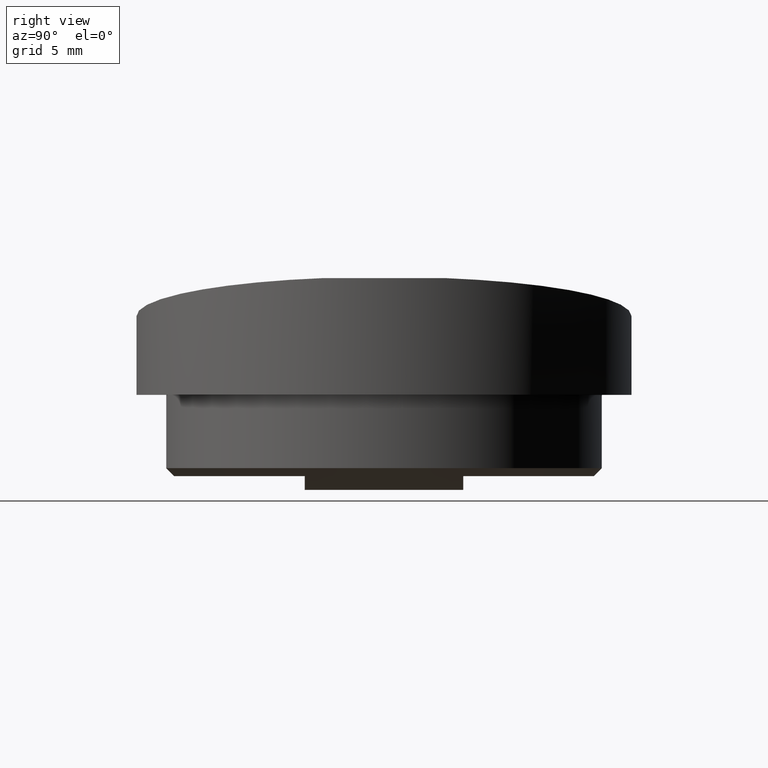
[diagram: clean part render]
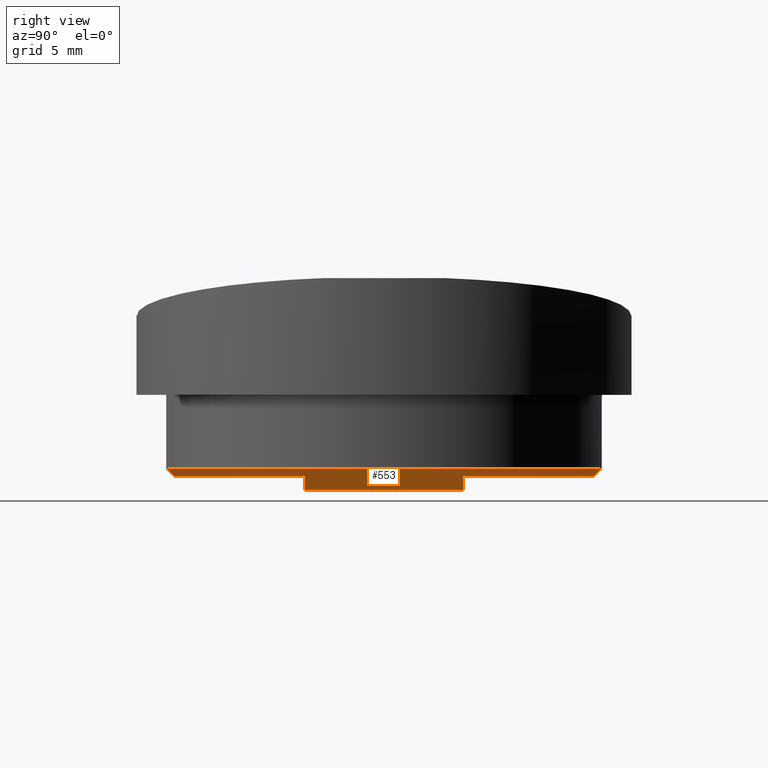
[diagram: same view with one face highlighted and labeled with its STEP entity id]
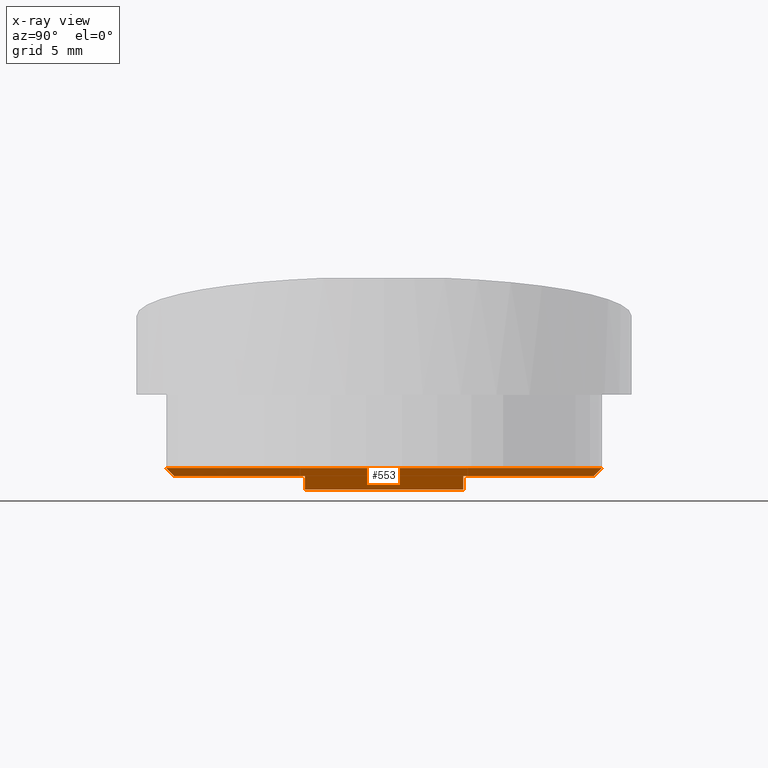
[diagram: x-ray of the same camera — body ghosted, the highlighted face saturated]
A machine part, right view. The second image highlights one B-rep face of the part: STEP entity #553.
The next image is the same camera in x-ray: the body ghosted, the highlighted face saturated — about 0% of this face is hidden behind the body in this view.
In plain terms, the highlighted conical surface has half-angle 45 deg.
Its self-contained STEP definition (entity closure, byte-faithful):
#9 = DIRECTION ( 'NONE',  ( 1.000000000000000000, -1.109335647967048500E-031, -1.232595164407831800E-032 ) ) ;
#11 = DIRECTION ( 'NONE',  ( 0.0000000000000000000, 4.622231866529395500E-033, -1.000000000000000000 ) ) ;
#23 = CARTESIAN_POINT ( 'NONE',  ( 0.0000000000000000000, -9.816312953446427500, -3.999999999999998200 ) ) ;
#49 = CARTESIAN_POINT ( 'NONE',  ( -0.2340786744818552100, -9.563546567403641100, -3.999999999999998200 ) ) ;
#55 = CARTESIAN_POINT ( 'NONE',  ( -0.6999999999999992900, -9.055937278934751000, 4.000000000000001800 ) ) ;
#68 = ORIENTED_EDGE ( 'NONE', *, *, #944, .T. ) ;
#70 = VECTOR ( 'NONE', #381, 1000.000000000000100 ) ;
#79 = CARTESIAN_POINT ( 'NONE',  ( 1.306550874272303600E-031, 1.298125607096194000E-015, 10.60000000000000300 ) ) ;
#147 = CARTESIAN_POINT ( 'NONE',  ( -1.306550874272302100E-031, 4.899565778521160400E-032, -10.60000000000000300 ) ) ;
#215 = VERTEX_POINT ( 'NONE', #777 ) ;
#268 = CIRCLE ( 'NONE', #533, 10.60000000000000500 ) ;
#277 = ORIENTED_EDGE ( 'NONE', *, *, #938, .F. ) ;
#283 = CIRCLE ( 'NONE', #501, 11.00000000000000000 ) ;
#313 = CONICAL_SURFACE ( 'NONE', #693, 10.60000000000000300, 0.7853981633974433900 ) ;
#319 = ORIENTED_EDGE ( 'NONE', *, *, #1085, .T. ) ;
#329 = CARTESIAN_POINT ( 'NONE',  ( 0.3999999999999975800, 1.347111479062083700E-015, -11.00000000000000000 ) ) ;
#377 = CARTESIAN_POINT ( 'NONE',  ( 0.0000000000000000000, 4.899565778521160400E-032, -10.60000000000000300 ) ) ;
#380 = VERTEX_POINT ( 'NONE', #527 ) ;
#381 = DIRECTION ( 'NONE',  ( 0.7071067811865507900, -7.517346443190816400E-032, -0.7071067811865442400 ) ) ;
#390 = CARTESIAN_POINT ( 'NONE',  ( 0.0000000000000000000, 0.0000000000000000000, 0.0000000000000000000 ) ) ;
#441 = CARTESIAN_POINT ( 'NONE',  ( 1.440057011490674600E-046, 1.298125607096194000E-015, 10.60000000000000300 ) ) ;
#461 = CARTESIAN_POINT ( 'NONE',  ( -0.6999999999999992900, -9.055937278934763400, -3.999999999999998200 ) ) ;
#486 = ORIENTED_EDGE ( 'NONE', *, *, #1070, .F. ) ;
#487 = VERTEX_POINT ( 'NONE', #329 ) ;
#491 = CARTESIAN_POINT ( 'NONE',  ( 0.0000000000000000000, 0.0000000000000000000, 0.0000000000000000000 ) ) ;
#494 = DIRECTION ( 'NONE',  ( 0.7071067811865507900, 8.659560562354879900E-017, 0.7071067811865442400 ) ) ;
#495 = VECTOR ( 'NONE', #494, 1000.000000000000100 ) ;
#497 = DIRECTION ( 'NONE',  ( 1.000000000000000000, -1.109335647967048500E-031, -1.232595164407831800E-032 ) ) ;
#498 = DIRECTION ( 'NONE',  ( 0.0000000000000000000, 4.622231866529395500E-033, -1.000000000000000000 ) ) ;
#501 = AXIS2_PLACEMENT_3D ( 'NONE', #534, #543, #546 ) ;
#505 = CARTESIAN_POINT ( 'NONE',  ( 0.0000000000000000000, 0.0000000000000000000, 0.0000000000000000000 ) ) ;
#510 = DIRECTION ( 'NONE',  ( 1.000000000000000000, -1.109335647967048500E-031, -1.232595164407831800E-032 ) ) ;
#517 = DIRECTION ( 'NONE',  ( 0.0000000000000000000, 4.622231866529395500E-033, -1.000000000000000000 ) ) ;
#520 = ORIENTED_EDGE ( 'NONE', *, *, #928, .T. ) ;
#527 = CARTESIAN_POINT ( 'NONE',  ( 0.0000000000000000000, -9.816312953446427500, 4.000000000000001800 ) ) ;
#529 = AXIS2_PLACEMENT_3D ( 'NONE', #505, #510, #517 ) ;
#533 = AXIS2_PLACEMENT_3D ( 'NONE', #491, #497, #498 ) ;
#534 = CARTESIAN_POINT ( 'NONE',  ( 0.3999999999999975800, 0.0000000000000000000, -2.958228394578794300E-028 ) ) ;
#543 = DIRECTION ( 'NONE',  ( -1.000000000000000000, 1.109335647967048500E-031, 1.232595164407831800E-032 ) ) ;
#546 = DIRECTION ( 'NONE',  ( 0.0000000000000000000, -4.622231866529396200E-033, 1.000000000000000000 ) ) ;
#553 = ADVANCED_FACE ( 'NONE', ( #897 ), #313, .T. ) ;
#613 = B_SPLINE_CURVE_WITH_KNOTS ( 'NONE', 3,
 ( #1021, #1019, #1034, #1035 ),
 .UNSPECIFIED., .F., .F.,
 ( 4, 4 ),
 ( 0.008442869032392080800, 0.009476364673237480700 ),
 .UNSPECIFIED. ) ;
#632 = VERTEX_POINT ( 'NONE', #55 ) ;
#638 = CARTESIAN_POINT ( 'NONE',  ( 0.3999999999999975800, -5.084455053182335500E-032, 11.00000000000000000 ) ) ;
#657 = AXIS2_PLACEMENT_3D ( 'NONE', #1087, #1090, #1093 ) ;
#671 = ORIENTED_EDGE ( 'NONE', *, *, #965, .T. ) ;
#688 = VERTEX_POINT ( 'NONE', #79 ) ;
#693 = AXIS2_PLACEMENT_3D ( 'NONE', #390, #9, #11 ) ;
#758 = VERTEX_POINT ( 'NONE', #147 ) ;
#763 = CIRCLE ( 'NONE', #529, 10.60000000000000500 ) ;
#767 = VERTEX_POINT ( 'NONE', #638 ) ;
#777 = CARTESIAN_POINT ( 'NONE',  ( 0.0000000000000000000, -9.816312953446427500, -3.999999999999998200 ) ) ;
#778 = ORIENTED_EDGE ( 'NONE', *, *, #1059, .T. ) ;
#850 = LINE ( 'NONE', #377, #70 ) ;
#897 = FACE_OUTER_BOUND ( 'NONE', #902, .T. ) ;
#902 = EDGE_LOOP ( 'NONE', ( #277, #68, #778, #486, #319, #905, #520, #671 ) ) ;
#905 = ORIENTED_EDGE ( 'NONE', *, *, #948, .T. ) ;
#928 = EDGE_CURVE ( 'NONE', #758, #487, #850, .T. ) ;
#938 = EDGE_CURVE ( 'NONE', #688, #767, #945, .T. ) ;
#940 = VERTEX_POINT ( 'NONE', #461 ) ;
#944 = EDGE_CURVE ( 'NONE', #688, #380, #268, .T. ) ;
#945 = LINE ( 'NONE', #441, #495 ) ;
#948 = EDGE_CURVE ( 'NONE', #215, #758, #763, .T. ) ;
#965 = EDGE_CURVE ( 'NONE', #487, #767, #283, .T. ) ;
#999 = B_SPLINE_CURVE_WITH_KNOTS ( 'NONE', 3,
 ( #1108, #1111, #49, #23 ),
 .UNSPECIFIED., .F., .F.,
 ( 4, 4 ),
 ( 0.008143189142317869600, 0.009174241428678590500 ),
 .UNSPECIFIED. ) ;
#1013 = CIRCLE ( 'NONE', #657, 9.900000000000011000 ) ;
#1019 = CARTESIAN_POINT ( 'NONE',  ( -0.2340957542530746900, -9.563528124065921800, 4.000000000000001800 ) ) ;
#1021 = CARTESIAN_POINT ( 'NONE',  ( 0.0000000000000000000, -9.816312953446427500, 4.000000000000001800 ) ) ;
#1034 = CARTESIAN_POINT ( 'NONE',  ( -0.4675142115210617600, -9.310092010250672300, 4.000000000000001800 ) ) ;
#1035 = CARTESIAN_POINT ( 'NONE',  ( -0.6999999999999992900, -9.055937278934751000, 4.000000000000001800 ) ) ;
#1059 = EDGE_CURVE ( 'NONE', #380, #632, #613, .T. ) ;
#1070 = EDGE_CURVE ( 'NONE', #940, #632, #1013, .T. ) ;
#1085 = EDGE_CURVE ( 'NONE', #940, #215, #999, .T. ) ;
#1087 = CARTESIAN_POINT ( 'NONE',  ( -0.6999999999999992900, 0.0000000000000000000, 0.0000000000000000000 ) ) ;
#1090 = DIRECTION ( 'NONE',  ( -1.000000000000000000, 1.109335647967048500E-031, 1.232595164407831800E-032 ) ) ;
#1093 = DIRECTION ( 'NONE',  ( 0.0000000000000000000, -4.622231866529395500E-033, 1.000000000000000000 ) ) ;
#1108 = CARTESIAN_POINT ( 'NONE',  ( -0.6999999999999992900, -9.055937278934763400, -3.999999999999998200 ) ) ;
#1111 = CARTESIAN_POINT ( 'NONE',  ( -0.4674780439947197600, -9.310131548787630600, -3.999999999999998200 ) ) ;